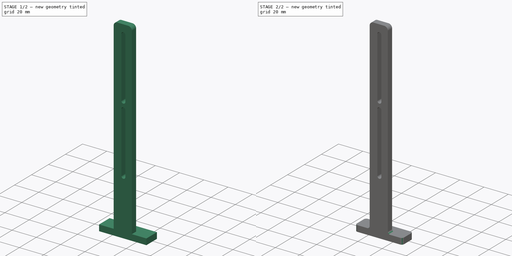
[diagram: build sequence overview — one tinted view per stage of 2, left to right]
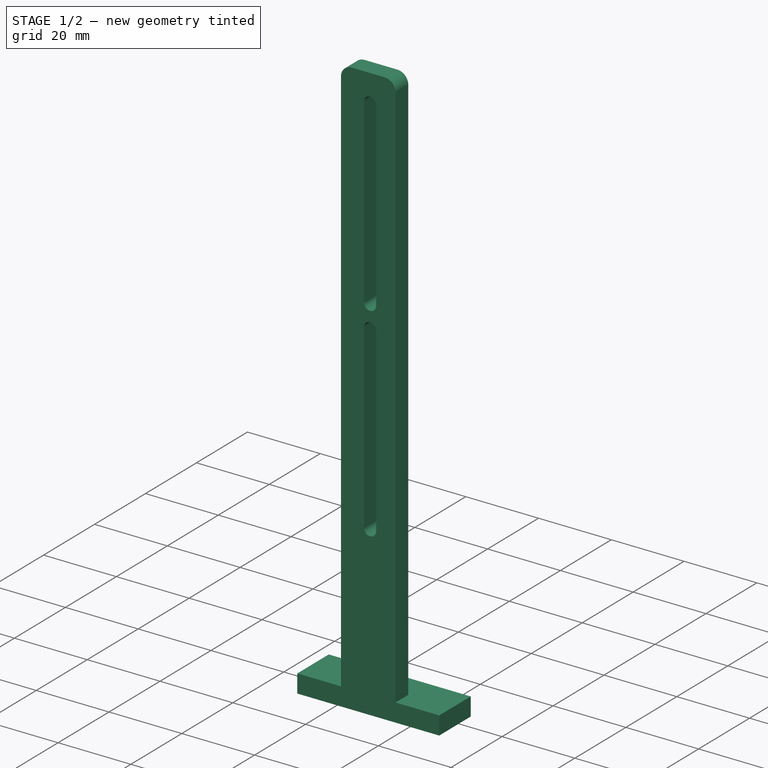
[diagram: stage 1 of 2 — iso view after this stage's code; geometry added in this stage tinted green]
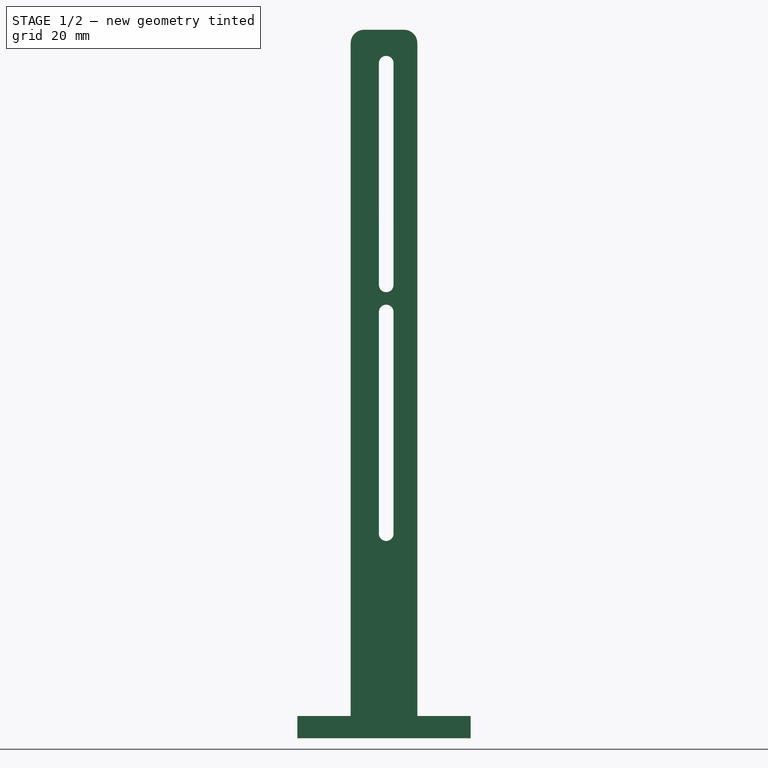
[diagram: stage 1 of 2 — front view after this stage's code; geometry added in this stage tinted green]
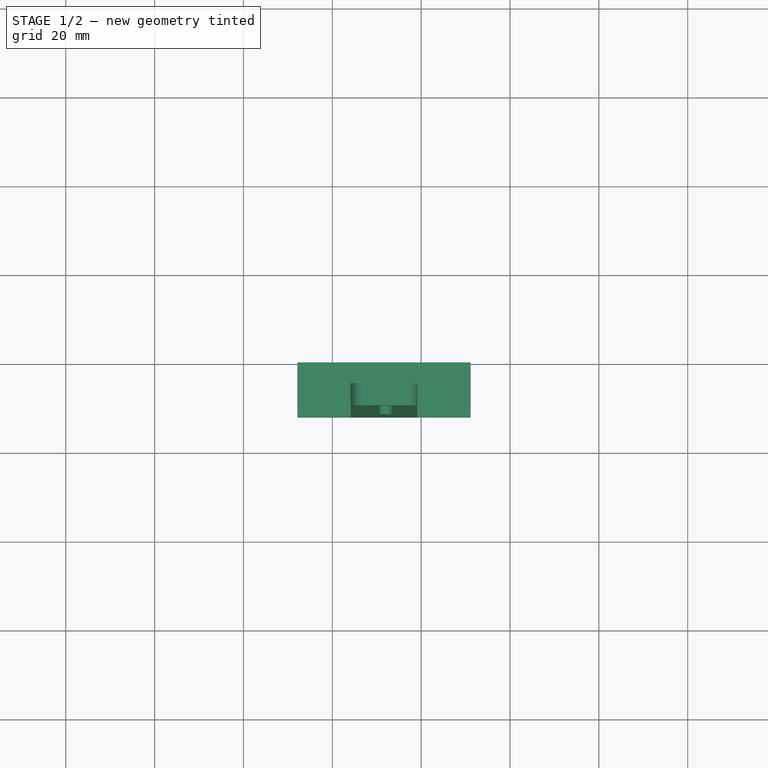
[diagram: stage 1 of 2 — top view after this stage's code; geometry added in this stage tinted green]
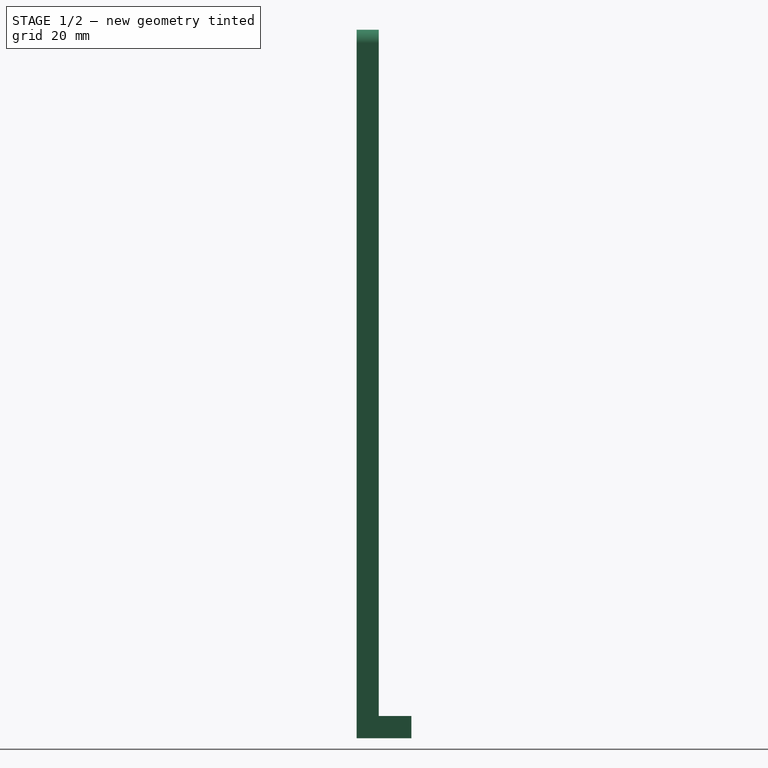
[diagram: stage 1 of 2 — right view after this stage's code; geometry added in this stage tinted green]
FCSTD DOCUMENT  (FreeCAD 0.20R29177 (Git))
Label: AT_003a_touchprobeZ
License: All rights reserved
LicenseURL: http://en.wikipedia.org/wiki/All_rights_reserved
objects: Sketcher::SketchObject×2, PartDesign::Pad×2, PartDesign::Fillet×2, PartDesign::SubShapeBinder×1, PartDesign::Body×1
note: 12 computed .brp shape members not serialized (recipe doc carries the construction recipe); baked Part::Feature solids carry a one-line shape summary decoded from their .brp

FEATURE [PartDesign::SubShapeBinder] Binder
  BindCopyOnChange = 0
  BindMode = 2
  ClaimChildren = false
  Context = -> Body [Binder.]
  Fuse = false
  MakeFace = true
  OffsetFill = false
  OffsetIntersection = false
  OffsetJoinType = 0
  OffsetOpenResult = false
  PartialLoad = false
  Relative = true
  _Version = 2
FEATURE [Sketcher::SketchObject] Sketch
  ExternalGeometry = -> [Binder]
  FullyConstrained = false
  MapMode = 5
  Placement = pos=(7.71832e-06,448,1.48597e-05) rot=(0,0.707107,0.707107;3.14159rad)
  Support = -> [Binder]
  sketch-geometry (18):
    g0: ArcOfCircle CenterX=-76.1383 CenterY=293.605 CenterZ=0 NormalX=0 NormalY=0 NormalZ=1 AngleXU=0 Radius=3 StartAngle=1.5708 EndAngle=3.14159
    g1: LineSegment StartX=-76.1383 StartY=296.605 StartZ=0 EndX=-67.1383 EndY=296.605 EndZ=0
    g2: ArcOfCircle CenterX=-67.1383 CenterY=293.605 CenterZ=0 NormalX=0 NormalY=0 NormalZ=1 AngleXU=0 Radius=3 StartAngle=-4.4e-15 EndAngle=1.5708
    g3: LineSegment StartX=-64.1383 StartY=293.605 StartZ=0 EndX=-64.1383 EndY=140.123 EndZ=0
    g4: ArcOfCircle CenterX=-67.1383 CenterY=140.123 CenterZ=0 NormalX=0 NormalY=0 NormalZ=1 AngleXU=0 Radius=3 StartAngle=4.71239 EndAngle=6.28319
    g5: LineSegment StartX=-67.1383 StartY=137.123 StartZ=0 EndX=-76.1383 EndY=137.123 EndZ=0
    g6: ArcOfCircle CenterX=-76.1383 CenterY=140.123 CenterZ=0 NormalX=0 NormalY=0 NormalZ=1 AngleXU=0 Radius=3 StartAngle=3.14159 EndAngle=4.71239
    g7: LineSegment StartX=-79.1383 StartY=140.123 StartZ=0 EndX=-79.1383 EndY=293.605 EndZ=0
    g8: GeomPoint X=-79.1383 Y=296.605 Z=0
    g9: GeomPoint X=-64.1383 Y=137.123 Z=0
    g10: ArcOfCircle CenterX=-72.1383 CenterY=289.069 CenterZ=0 NormalX=0 NormalY=0 NormalZ=1 AngleXU=0 Radius=1.65 StartAngle=4.5e-15 EndAngle=3.14159
    g11: ArcOfCircle CenterX=-72.1383 CenterY=239.182 CenterZ=0 NormalX=0 NormalY=0 NormalZ=1 AngleXU=0 Radius=1.65 StartAngle=3.14159 EndAngle=6.28319
    g12: LineSegment StartX=-73.7883 StartY=289.069 StartZ=0 EndX=-73.7883 EndY=239.182 EndZ=0
    g13: LineSegment StartX=-70.4883 StartY=239.182 StartZ=0 EndX=-70.4883 EndY=289.069 EndZ=0
    g14: ArcOfCircle CenterX=-72.1383 CenterY=233.069 CenterZ=0 NormalX=0 NormalY=0 NormalZ=1 AngleXU=0 Radius=1.65 StartAngle=7.2e-15 EndAngle=3.14159
    g15: ArcOfCircle CenterX=-72.1383 CenterY=183.182 CenterZ=0 NormalX=0 NormalY=0 NormalZ=1 AngleXU=0 Radius=1.65 StartAngle=3.14159 EndAngle=6.28319
    g16: LineSegment StartX=-73.7883 StartY=233.069 StartZ=0 EndX=-73.7883 EndY=183.182 EndZ=0
    g17: LineSegment StartX=-70.4883 StartY=183.182 StartZ=0 EndX=-70.4883 EndY=233.069 EndZ=0
  constraints (39):
    c: Tangent(g0,g1) = 1.5708
    c: Tangent(g1,g2) = 1.5708
    c: Tangent(g2,g3) = 1.5708
    c: Tangent(g3,g4) = 1.5708
    c: Tangent(g4,g5) = 1.5708
    c: Tangent(g5,g6) = 1.5708
    c: Tangent(g6,g7) = 1.5708
    c: Tangent(g7,g0) = 1.5708
    c: Horizontal(g1)
    c: Horizontal(g5)
    c: Vertical(g3)
    c: Vertical(g7)
    c: Equal(g0,g2)
    c: Equal(g2,g4)
    c: Equal(g4,g6)
    c: PointOnObject(g8,g1)
    c: PointOnObject(g8,g7)
    c: PointOnObject(g9,g3)
    c: PointOnObject(g9,g5)
    c: Distance(g2,g7) = 15
    c: Tangent(g10,g12) = -1.5708
    c: Tangent(g12,g11) = -1.5708
    c: Tangent(g11,g13) = -1.5708
    c: Tangent(g13,g10) = -1.5708
    c: Equal(g10,g11)
    c: Vertical(g12)
    c: Tangent(g14,g16) = -1.5708
    c: Tangent(g16,g15) = -1.5708
    c: Tangent(g15,g17) = -1.5708
    c: Tangent(g17,g14) = -1.5708
    c: Equal(g14,g15)
    c: Vertical(g16)
    c: Equal(g10,g14)
    c: Diameter(g10) = 3.3
    c: Equal(g12,g16)
    c: Symmetric(g10,g11,g-3)
    c: Symmetric(g15,g14,g-4)
    c: DistanceX(g10,g2) = 6.35
    c: Radius(g0) = 3
FEATURE [PartDesign::Pad] Pad
  Direction = (1.72284e-08,1,3.31689e-08)
  Length = 5
  Length2 = 10
  Profile = -> Sketch
  ReferenceAxis = -> Sketch [N_Axis]
  Type = 0
FEATURE [Sketcher::SketchObject] Sketch001
  ExternalGeometry = -> [Pad]
  FullyConstrained = false
  MapMode = 5
  Placement = pos=(0,-4.54824e-06,137.123) rot=(1,0,0;3.14159rad)
  Support = -> [Pad]
  sketch-geometry (4):
    g0: LineSegment StartX=52.1383 StartY=-448 StartZ=0 EndX=91.1383 EndY=-448 EndZ=0
    g1: LineSegment StartX=91.1383 StartY=-448 StartZ=0 EndX=91.1383 EndY=-460.349 EndZ=0
    g2: LineSegment StartX=91.1383 StartY=-460.349 StartZ=0 EndX=52.1383 EndY=-460.349 EndZ=0
    g3: LineSegment StartX=52.1383 StartY=-460.349 StartZ=0 EndX=52.1383 EndY=-448 EndZ=0
  constraints (11):
    c: Coincident(g0,g1)
    c: Coincident(g1,g2)
    c: Coincident(g2,g3)
    c: Coincident(g3,g0)
    c: Horizontal(g0)
    c: Horizontal(g2)
    c: Vertical(g1)
    c: Vertical(g3)
    c: Horizontal(g0,g-3)
    c: DistanceX(g0,g-3) = 15
    c: DistanceX(g-3,g0) = 15
FEATURE [PartDesign::Pad] Pad001
  BaseFeature = -> Pad
  Direction = (0,3.31689e-08,-1)
  Length = 5
  Length2 = 10
  Profile = -> Sketch001
  ReferenceAxis = -> Sketch001 [N_Axis]
  Reversed = true
  Type = 0
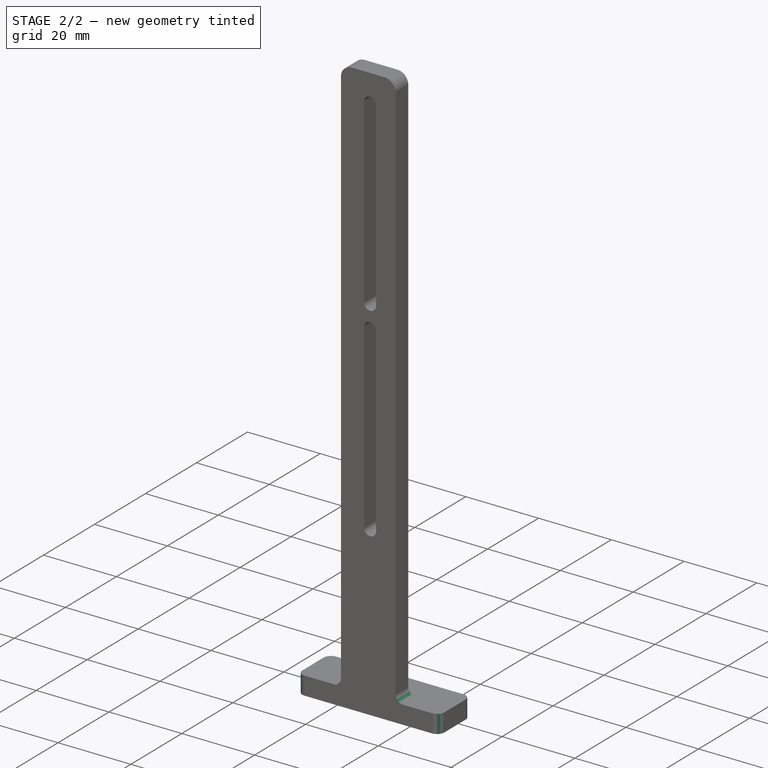
[diagram: stage 2 of 2 — iso view after this stage's code; geometry added in this stage tinted green]
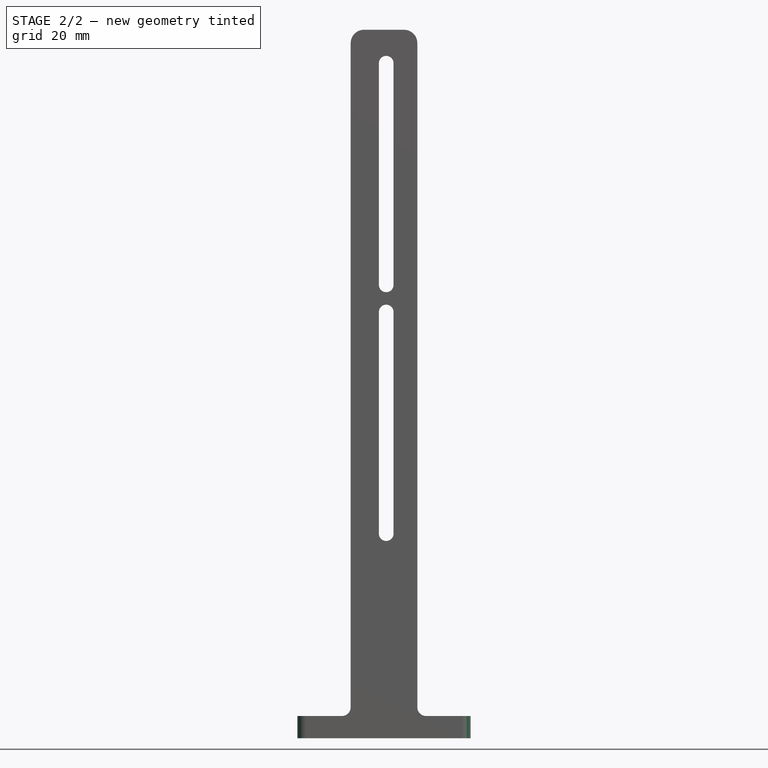
[diagram: stage 2 of 2 — front view after this stage's code; geometry added in this stage tinted green]
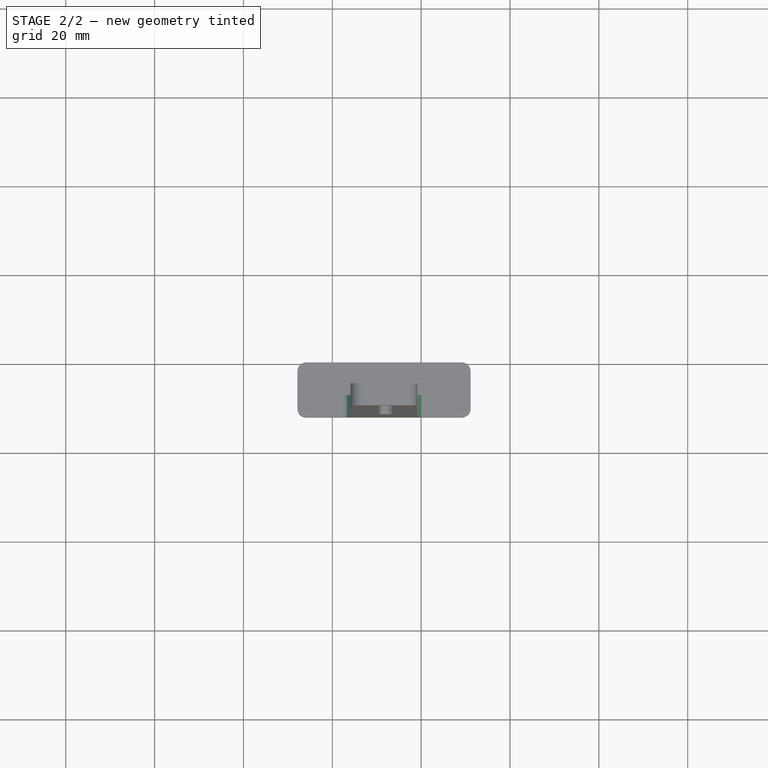
[diagram: stage 2 of 2 — top view after this stage's code; geometry added in this stage tinted green]
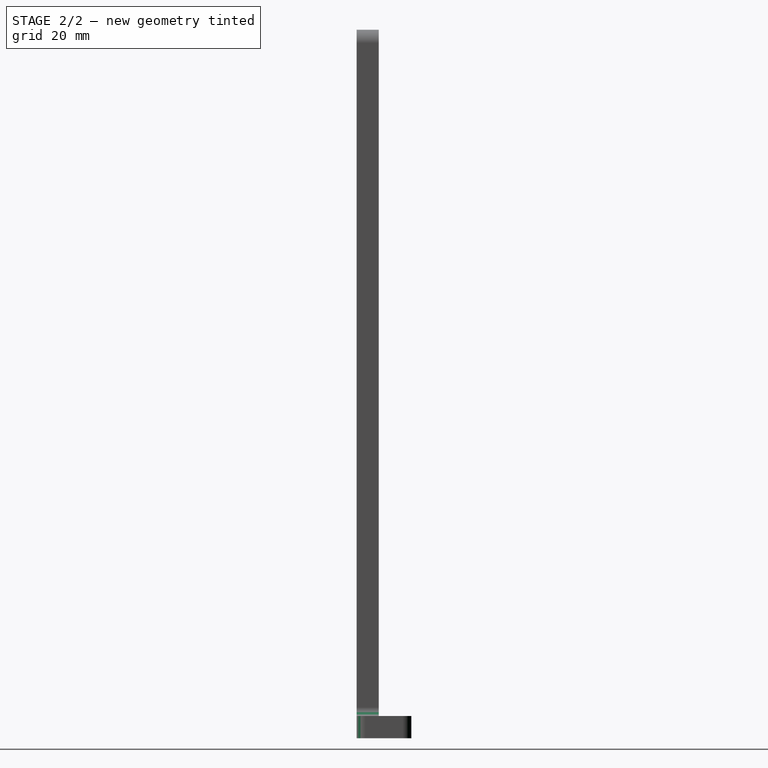
[diagram: stage 2 of 2 — right view after this stage's code; geometry added in this stage tinted green]
FEATURE [PartDesign::Fillet] Fillet
  Base = -> Pad001 [Edge53,Edge56,Edge54,Edge58]
  BaseFeature = -> Pad001
  Radius = 2
  SupportTransform = false
  UseAllEdges = false
FEATURE [PartDesign::Fillet] Fillet001
  Base = -> Fillet [Edge11,Edge7]
  BaseFeature = -> Fillet
  Radius = 2
  SupportTransform = false
  UseAllEdges = false
FEATURE [PartDesign::Body] Body
  Group = -> [Binder,Sketch,Pad,Sketch001,Pad001,Fillet,Fillet001]
  Origin = -> Origin
  Tip = -> Fillet001
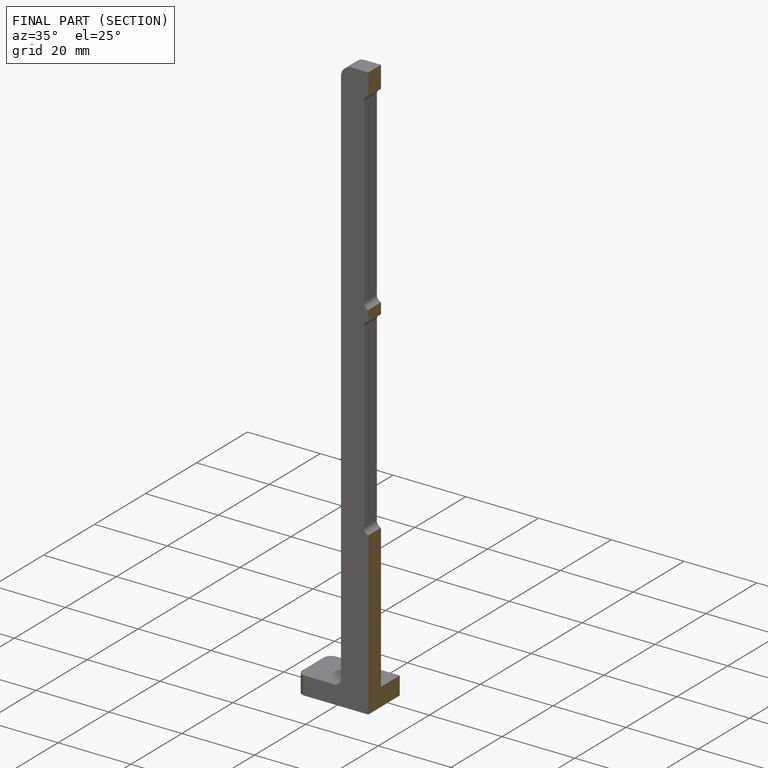
[diagram: finished part — half-section view (interior)]
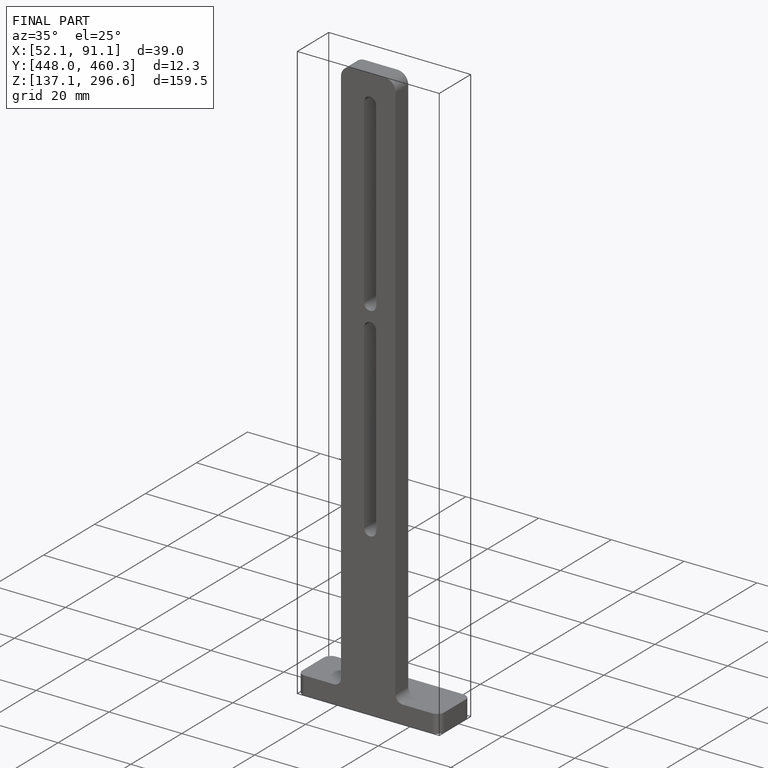
[diagram: finished part — iso view with bounding-box wireframe]
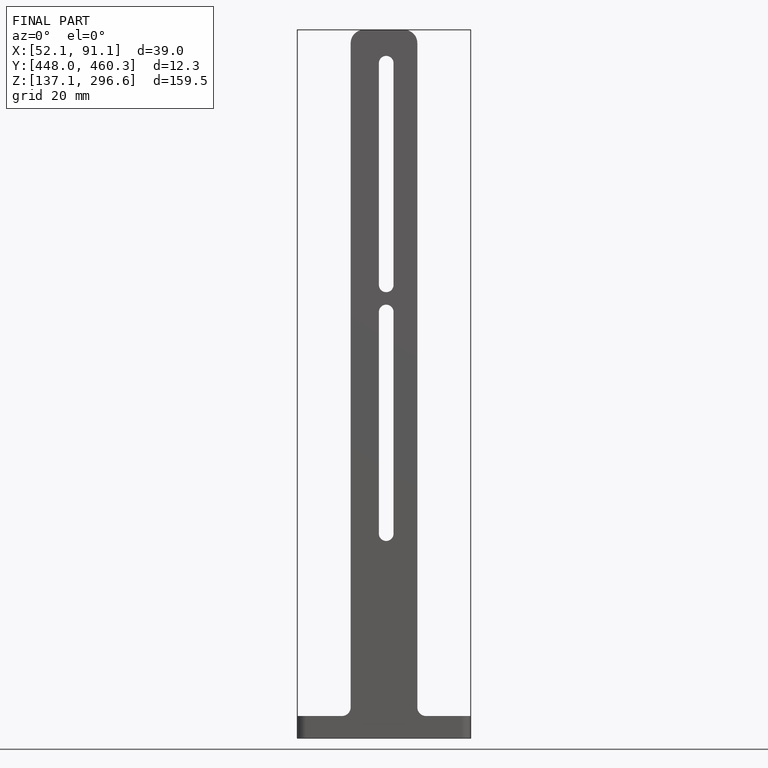
[diagram: finished part — front view with bounding-box wireframe]
